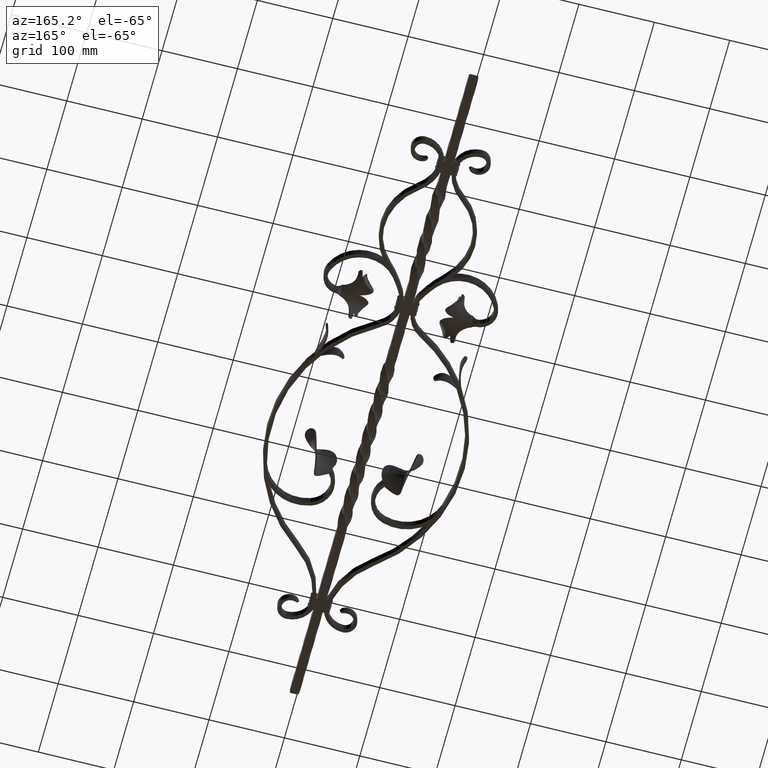
[diagram: clean part render]
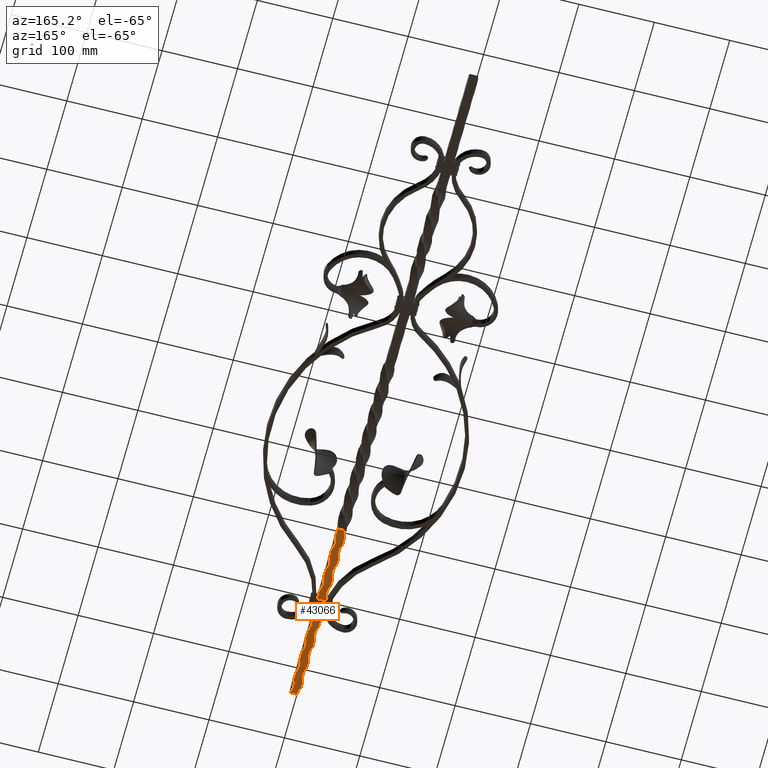
[diagram: same view with one face highlighted and labeled with its STEP entity id]
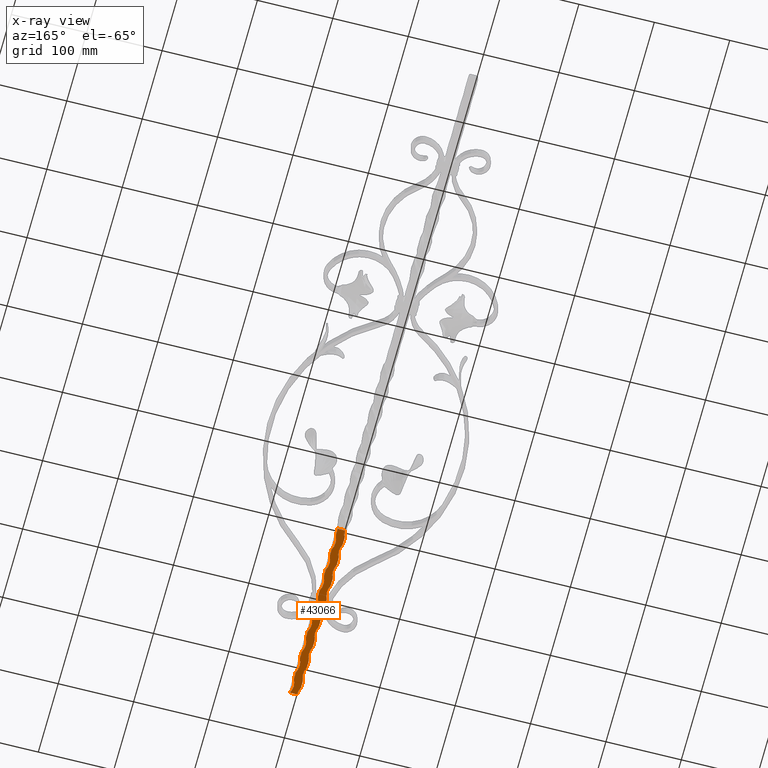
[diagram: x-ray of the same camera — body ghosted, the highlighted face saturated]
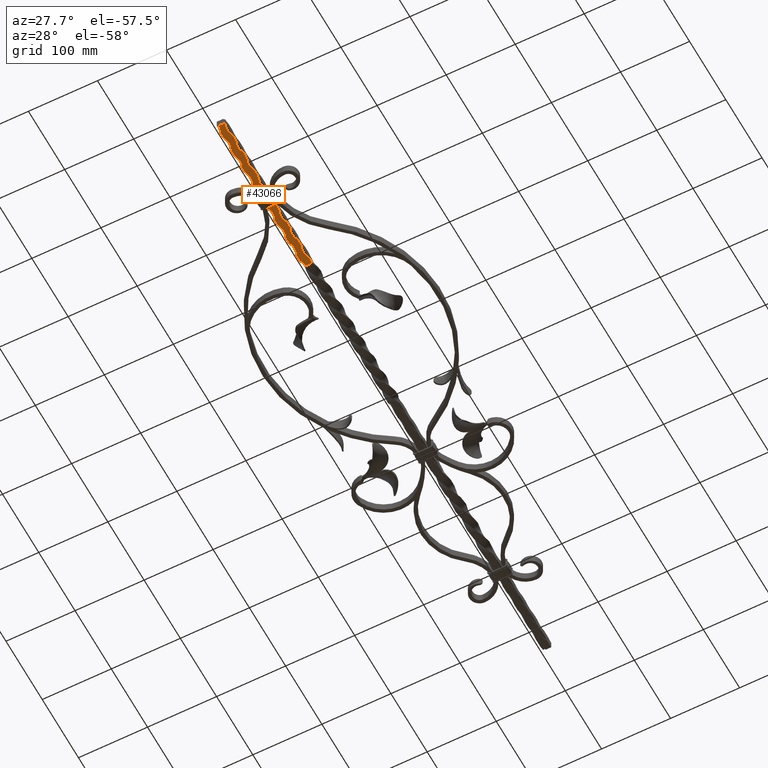
[diagram: same view with one face highlighted and labeled with its STEP entity id]
A machine part, auxiliary view. The second image highlights one B-rep face of the part: STEP entity #43066.
The next image is the same camera in x-ray: the body ghosted, the highlighted face saturated — about 0% of this face is hidden behind the body in this view.
A second angle (auxiliary view) of the same face is appended — the face is thin or edge-on in the first view.
In plain terms, the highlighted planar face has unit normal (0, 0, 1).
Its self-contained STEP definition (entity closure, byte-faithful):
#184 = CARTESIAN_POINT ( 'NONE',  ( 5.999999999685659446, -429.9999997135420813, -5.999999847536567010 ) ) ;
#329 = ORIENTED_EDGE ( 'NONE', *, *, #42708, .T. ) ;
#478 = ORIENTED_EDGE ( 'NONE', *, *, #45015, .F. ) ;
#612 = CARTESIAN_POINT ( 'NONE',  ( -5.999999840592119327, -439.9999997005213004, -5.999999999685662999 ) ) ;
#917 = B_SPLINE_CURVE_WITH_KNOTS ( 'NONE', 3,
 ( #52810, #15161, #49097, #53370 ),
 .UNSPECIFIED., .F., .F.,
 ( 4, 4 ),
 ( 0.6666666675319417035, 0.7083333324085947513 ),
 .UNSPECIFIED. ) ;
#940 = CARTESIAN_POINT ( 'NONE',  ( -3.500000000314102522, -450.0000000000000000, -5.999999999816880702 ) ) ;
#1071 = VERTEX_POINT ( 'NONE', #19624 ) ;
#1162 = DIRECTION ( 'NONE',  ( 1.000000000000000000, 0.000000000000000000, -5.239015920434916151E-11 ) ) ;
#1188 = CARTESIAN_POINT ( 'NONE',  ( 5.999999999685659446, -429.9999997135420813, -5.999999847536567010 ) ) ;
#1237 = DIRECTION ( 'NONE',  ( 1.000000000000000000, 0.000000000000000000, -5.239015920434915504E-11 ) ) ;
#1297 = CARTESIAN_POINT ( 'NONE',  ( 5.999995960595793321, -209.9999643872420165, -5.999988758433365987 ) ) ;
#1341 = CARTESIAN_POINT ( 'NONE',  ( 5.999999999685661223, -309.9999998697921910, -5.999999930869902798 ) ) ;
#1344 = CARTESIAN_POINT ( 'NONE',  ( 5.999999999685660335, -249.9999999479171038, -5.999999972536565807 ) ) ;
#1840 = AXIS2_PLACEMENT_3D ( 'NONE', #45204, #24595, #45029 ) ;
#1947 = ORIENTED_EDGE ( 'NONE', *, *, #36749, .T. ) ;
#2123 = CARTESIAN_POINT ( 'NONE',  ( -5.999999928555080686, -313.3333333723956002, -5.999999999685662999 ) ) ;
#2806 = EDGE_CURVE ( 'NONE', #43339, #19655, #52610, .T. ) ;
#2924 = ORIENTED_EDGE ( 'NONE', *, *, #9545, .F. ) ;
#3241 = AXIS2_PLACEMENT_3D ( 'NONE', #54245, #49784, #50322 ) ;
#3319 = LINE ( 'NONE', #47159, #9989 ) ;
#3405 = CARTESIAN_POINT ( 'NONE',  ( 5.999999999685893926, -420.0000000000000000, -6.000000000314094528 ) ) ;
#3529 = ORIENTED_EDGE ( 'NONE', *, *, #25804, .F. ) ;
#3886 = CARTESIAN_POINT ( 'NONE',  ( -6.000000000314101634, -399.9999999999999432, -5.999999999685907248 ) ) ;
#4099 = DIRECTION ( 'NONE',  ( -1.000000000000000000, 5.849386045986347711E-19, 5.239016895960169455E-11 ) ) ;
#4148 = ORIENTED_EDGE ( 'NONE', *, *, #36052, .F. ) ;
#4176 = B_SPLINE_CURVE_WITH_KNOTS ( 'NONE', 3,
 ( #4248, #38773, #4631, #184 ),
 .UNSPECIFIED., .F., .F.,
 ( 4, 4 ),
 ( 0.8750000011393205268, 0.9166666654730919461 ),
 .UNSPECIFIED. ) ;
#4181 = VERTEX_POINT ( 'NONE', #17060 ) ;
#4228 = CARTESIAN_POINT ( 'NONE',  ( -5.999999903092119169, -349.9999998177087832, -5.999999999685662999 ) ) ;
#4248 = CARTESIAN_POINT ( 'NONE',  ( 5.999999999685893926, -420.0000000000000000, -6.000000000314094528 ) ) ;
#4591 = CARTESIAN_POINT ( 'NONE',  ( -5.999999903092119169, -349.9999998177087832, -5.999999999685662999 ) ) ;
#4631 = CARTESIAN_POINT ( 'NONE',  ( 5.999999999685661223, -426.6666665668403198, -5.999999849851382905 ) ) ;
#5291 = CARTESIAN_POINT ( 'NONE',  ( 5.999999999685662111, -213.3333333289931772, -5.999999997999530876 ) ) ;
#5531 = B_SPLINE_CURVE_WITH_KNOTS ( 'NONE', 3,
 ( #3886, #11721, #33057, #54771 ),
 .UNSPECIFIED., .F., .F.,
 ( 4, 4 ),
 ( 0.7916666676957437865, 0.8333333322468764459 ),
 .UNSPECIFIED. ) ;
#5828 = ORIENTED_EDGE ( 'NONE', *, *, #17840, .F. ) ;
#5876 = VERTEX_POINT ( 'NONE', #49835 ) ;
#6397 = B_SPLINE_CURVE_WITH_KNOTS ( 'NONE', 3,
 ( #26751, #39553, #31220, #1341 ),
 .UNSPECIFIED., .F., .F.,
 ( 4, 4 ),
 ( 0.3750000004882789728, 0.4166666661241343328 ),
 .UNSPECIFIED. ) ;
#7375 = VERTEX_POINT ( 'NONE', #47476 ) ;
#7378 = AXIS2_PLACEMENT_3D ( 'NONE', #49378, #23610, #40993 ) ;
#7679 = EDGE_CURVE ( 'NONE', #41020, #54503, #23185, .T. ) ;
#7751 = EDGE_CURVE ( 'NONE', #30237, #11842, #30468, .T. ) ;
#8070 = CARTESIAN_POINT ( 'NONE',  ( 24.74999999968593301, -229.9999999999999147, -6.000000001296411867 ) ) ;
#8464 = CIRCLE ( 'NONE', #3241, 21.25000000000003908 ) ;
#8740 = EDGE_CURVE ( 'NONE', #18875, #27350, #23825, .T. ) ;
#8919 = CARTESIAN_POINT ( 'NONE',  ( -5.999999882258784112, -379.9999997786462131, -5.999999999685662999 ) ) ;
#8970 = ORIENTED_EDGE ( 'NONE', *, *, #39222, .F. ) ;
#9101 = FACE_OUTER_BOUND ( 'NONE', #54392, .T. ) ;
#9335 = ORIENTED_EDGE ( 'NONE', *, *, #29675, .F. ) ;
#9545 = EDGE_CURVE ( 'NONE', #38109, #35365, #15712, .T. ) ;
#9679 = CIRCLE ( 'NONE', #10067, 21.25000000000003553 ) ;
#9791 = CIRCLE ( 'NONE', #11633, 21.25000000000003908 ) ;
#9792 = DIRECTION ( 'NONE',  ( -5.239016895960169455E-11, -8.731861808807583131E-21, -1.000000000000000000 ) ) ;
#9814 = AXIS2_PLACEMENT_3D ( 'NONE', #20106, #37503, #37330 ) ;
#9831 = ORIENTED_EDGE ( 'NONE', *, *, #8740, .F. ) ;
#9863 = VERTEX_POINT ( 'NONE', #50692 ) ;
#9931 = CARTESIAN_POINT ( 'NONE',  ( -5.999999923925450673, -319.9999998567711827, -5.999999999685662999 ) ) ;
#9989 = VECTOR ( 'NONE', #4099, 1000.000000000000000 ) ;
#10067 = AXIS2_PLACEMENT_3D ( 'NONE', #15089, #15451, #31930 ) ;
#10335 = DIRECTION ( 'NONE',  ( 1.000000000000000000, -6.530723674265616128E-15, -5.239015920434916151E-11 ) ) ;
#10749 = EDGE_CURVE ( 'NONE', #54503, #19002, #23878, .T. ) ;
#10974 = CARTESIAN_POINT ( 'NONE',  ( -6.000000000314099857, -249.9999999999999432, -5.999999999685907248 ) ) ;
#10988 = CARTESIAN_POINT ( 'NONE',  ( -5.999999944758783954, -289.9999998958337528, -5.999999999685662999 ) ) ;
#11054 = VERTEX_POINT ( 'NONE', #26564 ) ;
#11082 = CARTESIAN_POINT ( 'NONE',  ( -5.999999988740265522, -226.6666666536459900, -5.999999999685662999 ) ) ;
#11190 = EDGE_CURVE ( 'NONE', #11653, #31189, #40910, .T. ) ;
#11297 = DIRECTION ( 'NONE',  ( -5.239016895960169455E-11, -8.731861808807583131E-21, -1.000000000000000000 ) ) ;
#11633 = AXIS2_PLACEMENT_3D ( 'NONE', #35381, #22243, #1237 ) ;
#11653 = VERTEX_POINT ( 'NONE', #27000 ) ;
#11721 = CARTESIAN_POINT ( 'NONE',  ( -5.999999866055080844, -403.3333334114581703, -5.999999999685662999 ) ) ;
#11808 = AXIS2_PLACEMENT_3D ( 'NONE', #40940, #45609, #19849 ) ;
#11842 = VERTEX_POINT ( 'NONE', #3405 ) ;
#11936 = CARTESIAN_POINT ( 'NONE',  ( 5.999999999685660335, -399.9999997526046513, -5.999999868369902067 ) ) ;
#12058 = CARTESIAN_POINT ( 'NONE',  ( 5.999999999685660335, -279.9999999088545906, -5.999999951703234302 ) ) ;
#12081 = VERTEX_POINT ( 'NONE', #1344 ) ;
#12432 = ORIENTED_EDGE ( 'NONE', *, *, #2806, .F. ) ;
#12687 = CARTESIAN_POINT ( 'NONE',  ( 24.74999999968593301, -290.0000000000000000, -6.000000001296411867 ) ) ;
#13120 = CARTESIAN_POINT ( 'NONE',  ( -6.000000000314100745, -279.9999999999999432, -5.999999999685907248 ) ) ;
#13629 = CARTESIAN_POINT ( 'NONE',  ( 5.999999999685660335, -399.9999997526046513, -5.999999868369902067 ) ) ;
#13791 = VERTEX_POINT ( 'NONE', #20568 ) ;
#14259 = ORIENTED_EDGE ( 'NONE', *, *, #7679, .T. ) ;
#14987 = CARTESIAN_POINT ( 'NONE',  ( -6.000000000314101634, -399.9999999999999432, -5.999999999685907248 ) ) ;
#15089 = CARTESIAN_POINT ( 'NONE',  ( -24.75000000031413805, -389.9999999999999432, -5.999999998703589910 ) ) ;
#15161 = CARTESIAN_POINT ( 'NONE',  ( -5.999999886888414125, -373.3333333984373894, -5.999999999685662999 ) ) ;
#15243 = CARTESIAN_POINT ( 'NONE',  ( -6.000000000314099857, -249.9999999999999432, -5.999999999685907248 ) ) ;
#15451 = DIRECTION ( 'NONE',  ( -5.239016895960169455E-11, -8.731861808807583131E-21, -1.000000000000000000 ) ) ;
#15712 = B_SPLINE_CURVE_WITH_KNOTS ( 'NONE', 3,
 ( #42552, #26030, #17367, #612 ),
 .UNSPECIFIED., .F., .F.,
 ( 4, 4 ),
 ( 0.9166666678595463136, 0.9583333320851580295 ),
 .UNSPECIFIED. ) ;
#15780 = CARTESIAN_POINT ( 'NONE',  ( -5.999999965592115458, -259.9999999348960955, -5.999999999685662999 ) ) ;
#15791 = DIRECTION ( 'NONE',  ( 1.000000000000000000, 1.306144734853123226E-14, -5.239015920434916151E-11 ) ) ;
#15846 = DIRECTION ( 'NONE',  ( 1.000000000000000000, 7.836868409118738407E-15, -5.239015920434916151E-11 ) ) ;
#16126 = VERTEX_POINT ( 'NONE', #1297 ) ;
#16415 = ORIENTED_EDGE ( 'NONE', *, *, #49522, .T. ) ;
#16605 = CARTESIAN_POINT ( 'NONE',  ( 5.999999999685658558, -396.6666665798611575, -5.999999870684716186 ) ) ;
#16665 = CARTESIAN_POINT ( 'NONE',  ( -6.000000000314099857, -220.0000000000000284, -5.999999999685907248 ) ) ;
#16885 = ORIENTED_EDGE ( 'NONE', *, *, #32055, .T. ) ;
#16946 = CARTESIAN_POINT ( 'NONE',  ( -6.000000000314101634, -430.0000000000000000, -5.999999999685907248 ) ) ;
#17060 = CARTESIAN_POINT ( 'NONE',  ( 5.999999999685895702, -239.9999999999999432, -6.000000000314094528 ) ) ;
#17255 = CARTESIAN_POINT ( 'NONE',  ( -5.999999905406932399, -346.6666666015626674, -5.999999999685662999 ) ) ;
#17367 = CARTESIAN_POINT ( 'NONE',  ( -5.999999842906934333, -436.6666665625002111, -5.999999999685662999 ) ) ;
#17840 = EDGE_CURVE ( 'NONE', #31926, #18875, #24348, .T. ) ;
#17884 = CARTESIAN_POINT ( 'NONE',  ( -5.999999965592115458, -259.9999999348960955, -5.999999999685662999 ) ) ;
#18134 = CIRCLE ( 'NONE', #19754, 21.25000000000003908 ) ;
#18875 = VERTEX_POINT ( 'NONE', #17884 ) ;
#19002 = VERTEX_POINT ( 'NONE', #940 ) ;
#19046 = CARTESIAN_POINT ( 'NONE',  ( -3.500000000314102522, -210.0000000001805347, -5.999999999816880702 ) ) ;
#19163 = CARTESIAN_POINT ( 'NONE',  ( -6.000000000314101634, -370.0000000000000568, -5.999999999685907248 ) ) ;
#19181 = AXIS2_PLACEMENT_3D ( 'NONE', #25953, #22286, #51589 ) ;
#19194 = CARTESIAN_POINT ( 'NONE',  ( 5.999999999685661223, -243.3333333420137023, -5.999999977166198484 ) ) ;
#19295 = ORIENTED_EDGE ( 'NONE', *, *, #34783, .T. ) ;
#19343 = CARTESIAN_POINT ( 'NONE',  ( 5.999999999685894814, -330.0000000000000000, -6.000000000314094528 ) ) ;
#19428 = CARTESIAN_POINT ( 'NONE',  ( 5.999999999685893926, -360.0000000000000568, -6.000000000314094528 ) ) ;
#19624 = CARTESIAN_POINT ( 'NONE',  ( 5.999999999685661223, -309.9999998697921910, -5.999999930869902798 ) ) ;
#19655 = VERTEX_POINT ( 'NONE', #38878 ) ;
#19754 = AXIS2_PLACEMENT_3D ( 'NONE', #12687, #43111, #51663 ) ;
#19849 = DIRECTION ( 'NONE',  ( 1.000000000000000000, 0.000000000000000000, -5.239015920434915504E-11 ) ) ;
#20106 = CARTESIAN_POINT ( 'NONE',  ( 24.74999999968593301, -379.9999999999999432, -6.000000001296411867 ) ) ;
#20568 = CARTESIAN_POINT ( 'NONE',  ( 5.999999999685893926, -360.0000000000000568, -6.000000000314094528 ) ) ;
#20909 = CARTESIAN_POINT ( 'NONE',  ( 5.999999999685894814, -269.9999999999999432, -6.000000000314094528 ) ) ;
#21125 = DIRECTION ( 'NONE',  ( 1.000000000000000000, -8.495165355484713727E-12, -5.239015920434916151E-11 ) ) ;
#21277 = VERTEX_POINT ( 'NONE', #8919 ) ;
#21477 = EDGE_CURVE ( 'NONE', #35365, #19002, #54006, .T. ) ;
#21526 = B_SPLINE_CURVE_WITH_KNOTS ( 'NONE', 3,
 ( #45143, #19194, #37327, #46048 ),
 .UNSPECIFIED., .F., .F.,
 ( 4, 4 ),
 ( 0.1250000001627580848, 0.1666666664496546379 ),
 .UNSPECIFIED. ) ;
#21562 = AXIS2_PLACEMENT_3D ( 'NONE', #8070, #24618, #41840 ) ;
#22228 = EDGE_CURVE ( 'NONE', #36717, #22527, #18134, .T. ) ;
#22243 = DIRECTION ( 'NONE',  ( 5.239016895960169455E-11, 8.731861808807583131E-21, 1.000000000000000000 ) ) ;
#22286 = DIRECTION ( 'NONE',  ( 5.239016895960169455E-11, 8.731861808807583131E-21, 1.000000000000000000 ) ) ;
#22527 = VERTEX_POINT ( 'NONE', #45492 ) ;
#22983 = ORIENTED_EDGE ( 'NONE', *, *, #7751, .T. ) ;
#23002 = B_SPLINE_CURVE_WITH_KNOTS ( 'NONE', 3,
 ( #47660, #48037, #26866, #38954 ),
 .UNSPECIFIED., .F., .F.,
 ( 4, 4 ),
 ( 0.2916666670405352324, 0.3333333328937506668 ),
 .UNSPECIFIED. ) ;
#23185 = CIRCLE ( 'NONE', #36354, 21.25000000000003553 ) ;
#23329 = CARTESIAN_POINT ( 'NONE',  ( 5.999999999685661223, -366.6666665928821089, -5.999999891518051243 ) ) ;
#23363 = ORIENTED_EDGE ( 'NONE', *, *, #39187, .T. ) ;
#23379 = CARTESIAN_POINT ( 'NONE',  ( -24.75000000031413805, -450.0000000000000000, -5.999999998703589910 ) ) ;
#23610 = DIRECTION ( 'NONE',  ( -5.239016895960169455E-11, -8.731861808807583131E-21, -1.000000000000000000 ) ) ;
#23825 = CIRCLE ( 'NONE', #29689, 21.25000000000003553 ) ;
#23878 = B_SPLINE_CURVE_WITH_KNOTS ( 'NONE', 3,
 ( #45362, #45899, #24909, #53909 ),
 .UNSPECIFIED., .F., .F.,
 ( 4, 4 ),
 ( 0.000000000000000000, 0.7916666776620173707 ),
 .UNSPECIFIED. ) ;
#24348 = B_SPLINE_CURVE_WITH_KNOTS ( 'NONE', 3,
 ( #15243, #40969, #28012, #15780 ),
 .UNSPECIFIED., .F., .F.,
 ( 4, 4 ),
 ( 0.1666666668767328718, 0.2083333330554683616 ),
 .UNSPECIFIED. ) ;
#24470 = CARTESIAN_POINT ( 'NONE',  ( 24.74999999968592945, -440.0000000000000000, -6.000000001296411867 ) ) ;
#24595 = DIRECTION ( 'NONE',  ( 5.239016895960169455E-11, 8.731861808807583131E-21, 1.000000000000000000 ) ) ;
#24618 = DIRECTION ( 'NONE',  ( 5.239016895960169455E-11, 8.731861808807583131E-21, 1.000000000000000000 ) ) ;
#24909 = CARTESIAN_POINT ( 'NONE',  ( -0.3333333336475143294, -450.0000000000000568, -5.999999999982541077 ) ) ;
#25143 = CARTESIAN_POINT ( 'NONE',  ( 5.999999999685659446, -273.3333333550344832, -5.999999956332862538 ) ) ;
#25172 = B_SPLINE_CURVE_WITH_KNOTS ( 'NONE', 3,
 ( #34635, #5291, #30921, #26632 ),
 .UNSPECIFIED., .F., .F.,
 ( 4, 4 ),
 ( 0.000000000000000000, 0.04166666661241451991 ),
 .UNSPECIFIED. ) ;
#25275 = EDGE_CURVE ( 'NONE', #48327, #21277, #917, .T. ) ;
#25804 = EDGE_CURVE ( 'NONE', #27350, #43339, #23002, .T. ) ;
#25904 = DIRECTION ( 'NONE',  ( -5.239016895960169455E-11, -8.731861808807583131E-21, -1.000000000000000000 ) ) ;
#25953 = CARTESIAN_POINT ( 'NONE',  ( 24.74999999968593301, -320.0000000000000000, -6.000000001296411867 ) ) ;
#26026 = B_SPLINE_CURVE_WITH_KNOTS ( 'NONE', 3,
 ( #41970, #28661, #16605, #11936 ),
 .UNSPECIFIED., .F., .F.,
 ( 4, 4 ),
 ( 0.7500000009765604991, 0.7916666656358526399 ),
 .UNSPECIFIED. ) ;
#26030 = CARTESIAN_POINT ( 'NONE',  ( -5.999999845221749339, -433.3333334244790080, -5.999999999685662999 ) ) ;
#26564 = CARTESIAN_POINT ( 'NONE',  ( -5.999999986425450516, -229.9999999739587508, -5.999999999685665664 ) ) ;
#26632 = CARTESIAN_POINT ( 'NONE',  ( 5.999999999685658558, -219.9999999869795033, -5.999999993369898199 ) ) ;
#26702 = ORIENTED_EDGE ( 'NONE', *, *, #27441, .F. ) ;
#26751 = CARTESIAN_POINT ( 'NONE',  ( 5.999999999685894814, -300.0000000000000000, -6.000000000314094528 ) ) ;
#26866 = CARTESIAN_POINT ( 'NONE',  ( -5.999999947073599849, -286.6666666276043998, -5.999999999685662999 ) ) ;
#26934 = DIRECTION ( 'NONE',  ( -5.239016895960169455E-11, -8.731861808807583131E-21, -1.000000000000000000 ) ) ;
#26950 = ORIENTED_EDGE ( 'NONE', *, *, #52263, .T. ) ;
#26981 = CARTESIAN_POINT ( 'NONE',  ( -6.000000000314100745, -310.0000000000000000, -5.999999999685907248 ) ) ;
#27000 = CARTESIAN_POINT ( 'NONE',  ( -5.999999923925450673, -319.9999998567711827, -5.999999999685662999 ) ) ;
#27204 = CARTESIAN_POINT ( 'NONE',  ( 5.999999999685659446, -369.9999997916670509, -5.999999889203234460 ) ) ;
#27350 = VERTEX_POINT ( 'NONE', #13120 ) ;
#27441 = EDGE_CURVE ( 'NONE', #47737, #39628, #27742, .T. ) ;
#27566 = ORIENTED_EDGE ( 'NONE', *, *, #33400, .T. ) ;
#27581 = VERTEX_POINT ( 'NONE', #39985 ) ;
#27600 = ORIENTED_EDGE ( 'NONE', *, *, #42827, .T. ) ;
#27742 = CIRCLE ( 'NONE', #47860, 21.25000000000003553 ) ;
#27884 = EDGE_CURVE ( 'NONE', #12081, #27581, #8464, .T. ) ;
#27894 = CARTESIAN_POINT ( 'NONE',  ( 5.999999999685661223, -336.6666666059030035, -5.999999912351381859 ) ) ;
#28012 = CARTESIAN_POINT ( 'NONE',  ( -5.999999967906931353, -256.6666666406250101, -5.999999999685662999 ) ) ;
#28661 = CARTESIAN_POINT ( 'NONE',  ( 5.999999999685659446, -393.3333334071178342, -5.999999872999531192 ) ) ;
#29167 = ORIENTED_EDGE ( 'NONE', *, *, #31429, .T. ) ;
#29189 = ORIENTED_EDGE ( 'NONE', *, *, #49607, .F. ) ;
#29301 = CARTESIAN_POINT ( 'NONE',  ( -5.999999840592119327, -439.9999997005213004, -5.999999999685662999 ) ) ;
#29675 = EDGE_CURVE ( 'NONE', #7375, #38109, #49527, .T. ) ;
#29689 = AXIS2_PLACEMENT_3D ( 'NONE', #41705, #50067, #37628 ) ;
#29823 = CARTESIAN_POINT ( 'NONE',  ( -24.75000000031413805, -210.0000000000000284, -5.999999998703589910 ) ) ;
#30037 = CARTESIAN_POINT ( 'NONE',  ( -6.000000000314100745, -340.0000000000000000, -5.999999999685907248 ) ) ;
#30237 = VERTEX_POINT ( 'NONE', #13629 ) ;
#30468 = CIRCLE ( 'NONE', #11808, 21.25000000000003908 ) ;
#30714 = CIRCLE ( 'NONE', #49979, 21.25000000000003553 ) ;
#30921 = CARTESIAN_POINT ( 'NONE',  ( 5.999999999685662999, -216.6666666579863545, -5.999999995684716758 ) ) ;
#31189 = VERTEX_POINT ( 'NONE', #33164 ) ;
#31220 = CARTESIAN_POINT ( 'NONE',  ( 5.999999999685661223, -306.6666666189238413, -5.999999933184717804 ) ) ;
#31429 = EDGE_CURVE ( 'NONE', #16126, #5876, #25172, .T. ) ;
#31767 = ORIENTED_EDGE ( 'NONE', *, *, #22228, .T. ) ;
#31900 = CIRCLE ( 'NONE', #19181, 21.25000000000003908 ) ;
#31926 = VERTEX_POINT ( 'NONE', #10974 ) ;
#31930 = DIRECTION ( 'NONE',  ( 1.000000000000000000, 7.836868409118738407E-15, -5.239015920434916151E-11 ) ) ;
#32055 = EDGE_CURVE ( 'NONE', #11842, #41020, #4176, .T. ) ;
#32354 = EDGE_CURVE ( 'NONE', #11054, #31926, #30714, .T. ) ;
#32805 = VERTEX_POINT ( 'NONE', #52148 ) ;
#32974 = DIRECTION ( 'NONE',  ( 5.239016895960169455E-11, 8.731861808807583131E-21, 1.000000000000000000 ) ) ;
#33057 = CARTESIAN_POINT ( 'NONE',  ( -5.999999863740265837, -406.6666665755210488, -5.999999999685662999 ) ) ;
#33164 = CARTESIAN_POINT ( 'NONE',  ( -6.000000000314100745, -340.0000000000000000, -5.999999999685907248 ) ) ;
#33400 = EDGE_CURVE ( 'NONE', #54892, #9863, #38766, .T. ) ;
#33444 = ORIENTED_EDGE ( 'NONE', *, *, #21477, .F. ) ;
#33647 = AXIS2_PLACEMENT_3D ( 'NONE', #50323, #53881, #15846 ) ;
#33943 = B_SPLINE_CURVE_WITH_KNOTS ( 'NONE', 3,
 ( #49131, #41302, #11082, #40752 ),
 .UNSPECIFIED., .F., .F.,
 ( 4, 4 ),
 ( 0.04166666671293051127, 0.08333333321718755515 ),
 .UNSPECIFIED. ) ;
#34626 = ORIENTED_EDGE ( 'NONE', *, *, #37472, .F. ) ;
#34635 = CARTESIAN_POINT ( 'NONE',  ( 5.999995960595793321, -209.9999643872420165, -5.999988758433365987 ) ) ;
#34783 = EDGE_CURVE ( 'NONE', #49703, #32805, #48345, .T. ) ;
#35365 = VERTEX_POINT ( 'NONE', #29301 ) ;
#35381 = CARTESIAN_POINT ( 'NONE',  ( 24.74999999968593301, -350.0000000000000568, -6.000000001296411867 ) ) ;
#35560 = CARTESIAN_POINT ( 'NONE',  ( -24.75000000031413805, -239.9999999999999432, -5.999999998703589910 ) ) ;
#35605 = EDGE_CURVE ( 'NONE', #31189, #45311, #52252, .T. ) ;
#36052 = EDGE_CURVE ( 'NONE', #39628, #11054, #33943, .T. ) ;
#36354 = AXIS2_PLACEMENT_3D ( 'NONE', #24470, #32974, #40765 ) ;
#36717 = VERTEX_POINT ( 'NONE', #12058 ) ;
#36749 = EDGE_CURVE ( 'NONE', #1071, #49703, #31900, .T. ) ;
#36794 = CARTESIAN_POINT ( 'NONE',  ( 5.999999999685661223, -339.9999998307296778, -5.999999910036569517 ) ) ;
#36881 = B_SPLINE_CURVE_WITH_KNOTS ( 'NONE', 3,
 ( #19428, #48551, #23329, #27204 ),
 .UNSPECIFIED., .F., .F.,
 ( 4, 4 ),
 ( 0.6250000008138005825, 0.6666666657986128897 ),
 .UNSPECIFIED. ) ;
#37049 = CARTESIAN_POINT ( 'NONE',  ( 5.999999999685660335, -279.9999999088545906, -5.999999951703234302 ) ) ;
#37135 = AXIS2_PLACEMENT_3D ( 'NONE', #23379, #11297, #40959 ) ;
#37321 = EDGE_CURVE ( 'NONE', #19655, #11653, #43227, .T. ) ;
#37327 = CARTESIAN_POINT ( 'NONE',  ( 5.999999999685661223, -246.6666666449654599, -5.999999974851383477 ) ) ;
#37330 = DIRECTION ( 'NONE',  ( 1.000000000000000000, 0.000000000000000000, -5.239015920434915504E-11 ) ) ;
#37472 = EDGE_CURVE ( 'NONE', #16126, #47737, #3319, .T. ) ;
#37503 = DIRECTION ( 'NONE',  ( 5.239016895960169455E-11, 8.731861808807583131E-21, 1.000000000000000000 ) ) ;
#37628 = DIRECTION ( 'NONE',  ( 1.000000000000000000, -7.836868409118738407E-15, -5.239015920434916151E-11 ) ) ;
#37899 = AXIS2_PLACEMENT_3D ( 'NONE', #52014, #26934, #1162 ) ;
#38075 = ORIENTED_EDGE ( 'NONE', *, *, #35605, .F. ) ;
#38109 = VERTEX_POINT ( 'NONE', #16946 ) ;
#38766 = CIRCLE ( 'NONE', #9814, 21.25000000000003908 ) ;
#38773 = CARTESIAN_POINT ( 'NONE',  ( 5.999999999685661223, -423.3333334201386151, -5.999999852166197911 ) ) ;
#38878 = CARTESIAN_POINT ( 'NONE',  ( -6.000000000314100745, -310.0000000000000000, -5.999999999685907248 ) ) ;
#38954 = CARTESIAN_POINT ( 'NONE',  ( -5.999999944758783954, -289.9999998958337528, -5.999999999685662999 ) ) ;
#39187 = EDGE_CURVE ( 'NONE', #4181, #12081, #21526, .T. ) ;
#39222 = EDGE_CURVE ( 'NONE', #53273, #7375, #5531, .T. ) ;
#39553 = CARTESIAN_POINT ( 'NONE',  ( 5.999999999685661223, -303.3333333680553778, -5.999999935499531922 ) ) ;
#39628 = VERTEX_POINT ( 'NONE', #16665 ) ;
#39985 = CARTESIAN_POINT ( 'NONE',  ( 5.999999999685894814, -269.9999999999999432, -6.000000000314094528 ) ) ;
#40037 = B_SPLINE_CURVE_WITH_KNOTS ( 'NONE', 3,
 ( #20909, #25143, #45945, #37049 ),
 .UNSPECIFIED., .F., .F.,
 ( 4, 4 ),
 ( 0.2500000003255184455, 0.2916666662868941939 ),
 .UNSPECIFIED. ) ;
#40258 = ORIENTED_EDGE ( 'NONE', *, *, #25275, .F. ) ;
#40752 = CARTESIAN_POINT ( 'NONE',  ( -5.999999986425450516, -229.9999999739587508, -5.999999999685665664 ) ) ;
#40765 = DIRECTION ( 'NONE',  ( 1.000000000000000000, 0.000000000000000000, -5.239015920434916151E-11 ) ) ;
#40890 = EDGE_CURVE ( 'NONE', #5876, #4181, #54357, .T. ) ;
#40910 = CIRCLE ( 'NONE', #7378, 21.25000000000003553 ) ;
#40940 = CARTESIAN_POINT ( 'NONE',  ( 24.74999999968593301, -410.0000000000000000, -6.000000001296411867 ) ) ;
#40954 = EDGE_CURVE ( 'NONE', #27581, #36717, #40037, .T. ) ;
#40959 = DIRECTION ( 'NONE',  ( 1.000000000000000000, 1.306144734853123226E-14, -5.239015920434916151E-11 ) ) ;
#40969 = CARTESIAN_POINT ( 'NONE',  ( -5.999999970221745471, -253.3333333463539532, -5.999999999685662999 ) ) ;
#40993 = DIRECTION ( 'NONE',  ( 1.000000000000000000, 5.224578939412492272E-15, -5.239015920434916151E-11 ) ) ;
#41020 = VERTEX_POINT ( 'NONE', #1188 ) ;
#41170 = CARTESIAN_POINT ( 'NONE',  ( -24.75000000031413805, -420.0000000000000000, -5.999999998703589910 ) ) ;
#41302 = CARTESIAN_POINT ( 'NONE',  ( -5.999999991055080528, -223.3333333333332007, -5.999999999685662999 ) ) ;
#41705 = CARTESIAN_POINT ( 'NONE',  ( -24.75000000031413805, -269.9999999999999432, -5.999999998703589910 ) ) ;
#41840 = DIRECTION ( 'NONE',  ( 1.000000000000000000, 0.000000000000000000, -5.239015920434915504E-11 ) ) ;
#41970 = CARTESIAN_POINT ( 'NONE',  ( 5.999999999685893926, -389.9999999999999432, -6.000000000314094528 ) ) ;
#42552 = CARTESIAN_POINT ( 'NONE',  ( -6.000000000314101634, -430.0000000000000000, -5.999999999685907248 ) ) ;
#42708 = EDGE_CURVE ( 'NONE', #32805, #13791, #9791, .T. ) ;
#42783 = ORIENTED_EDGE ( 'NONE', *, *, #10749, .T. ) ;
#42815 = CARTESIAN_POINT ( 'NONE',  ( -5.999999907721747405, -343.3333333854164948, -5.999999999685662999 ) ) ;
#42827 = EDGE_CURVE ( 'NONE', #13791, #54892, #36881, .T. ) ;
#43019 = ORIENTED_EDGE ( 'NONE', *, *, #40890, .T. ) ;
#43066 = ADVANCED_FACE ( 'NONE', ( #9101 ), #49291, .F. ) ;
#43111 = DIRECTION ( 'NONE',  ( 5.239016895960169455E-11, 8.731861808807583131E-21, 1.000000000000000000 ) ) ;
#43227 = B_SPLINE_CURVE_WITH_KNOTS ( 'NONE', 3,
 ( #26981, #2123, #48709, #9931 ),
 .UNSPECIFIED., .F., .F.,
 ( 4, 4 ),
 ( 0.4166666672043370934, 0.4583333327320315842 ),
 .UNSPECIFIED. ) ;
#43339 = VERTEX_POINT ( 'NONE', #10988 ) ;
#43699 = CIRCLE ( 'NONE', #37899, 21.25000000000003553 ) ;
#44342 = ORIENTED_EDGE ( 'NONE', *, *, #37321, .F. ) ;
#44927 = ORIENTED_EDGE ( 'NONE', *, *, #27884, .T. ) ;
#45015 = EDGE_CURVE ( 'NONE', #21277, #53273, #9679, .T. ) ;
#45029 = DIRECTION ( 'NONE',  ( 1.000000000000000000, -5.849386045986347711E-19, -5.239016895960169455E-11 ) ) ;
#45143 = CARTESIAN_POINT ( 'NONE',  ( 5.999999999685895702, -239.9999999999999432, -6.000000000314094528 ) ) ;
#45204 = CARTESIAN_POINT ( 'NONE',  ( 5.999999999685660335, 450.0000000000000000, -6.000000000314344994 ) ) ;
#45281 = DIRECTION ( 'NONE',  ( -5.239016895960169455E-11, -8.731861808807583131E-21, -1.000000000000000000 ) ) ;
#45311 = VERTEX_POINT ( 'NONE', #4228 ) ;
#45362 = CARTESIAN_POINT ( 'NONE',  ( 5.999999999685893037, -450.0000000000000000, -6.000000000314094528 ) ) ;
#45492 = CARTESIAN_POINT ( 'NONE',  ( 5.999999999685894814, -300.0000000000000000, -6.000000000314094528 ) ) ;
#45609 = DIRECTION ( 'NONE',  ( 5.239016895960169455E-11, 8.731861808807583131E-21, 1.000000000000000000 ) ) ;
#45899 = CARTESIAN_POINT ( 'NONE',  ( 2.833333333019073752, -450.0000000000000000, -6.000000000148443036 ) ) ;
#45945 = CARTESIAN_POINT ( 'NONE',  ( 5.999999999685659446, -276.6666666319445085, -5.999999954018047532 ) ) ;
#46048 = CARTESIAN_POINT ( 'NONE',  ( 5.999999999685660335, -249.9999999479171038, -5.999999972536565807 ) ) ;
#47159 = CARTESIAN_POINT ( 'NONE',  ( 5.999999999685660335, -210.0000000001805347, -6.000000000314344994 ) ) ;
#47476 = CARTESIAN_POINT ( 'NONE',  ( -5.999999861425451719, -409.9999997395838136, -5.999999999685662999 ) ) ;
#47660 = CARTESIAN_POINT ( 'NONE',  ( -6.000000000314100745, -279.9999999999999432, -5.999999999685907248 ) ) ;
#47737 = VERTEX_POINT ( 'NONE', #19046 ) ;
#47860 = AXIS2_PLACEMENT_3D ( 'NONE', #29823, #25904, #21125 ) ;
#48037 = CARTESIAN_POINT ( 'NONE',  ( -5.999999949388414855, -283.3333333593748762, -5.999999999685662999 ) ) ;
#48327 = VERTEX_POINT ( 'NONE', #19163 ) ;
#48345 = B_SPLINE_CURVE_WITH_KNOTS ( 'NONE', 3,
 ( #52423, #49060, #27894, #36794 ),
 .UNSPECIFIED., .F., .F.,
 ( 4, 4 ),
 ( 0.5000000006510398887, 0.5416666659613739165 ),
 .UNSPECIFIED. ) ;
#48551 = CARTESIAN_POINT ( 'NONE',  ( 5.999999999685661223, -363.3333333940970533, -5.999999893832865361 ) ) ;
#48709 = CARTESIAN_POINT ( 'NONE',  ( -5.999999926240265680, -316.6666666145833915, -5.999999999685662999 ) ) ;
#48861 = ORIENTED_EDGE ( 'NONE', *, *, #40954, .T. ) ;
#49060 = CARTESIAN_POINT ( 'NONE',  ( 5.999999999685661223, -333.3333333810762724, -5.999999914666196865 ) ) ;
#49097 = CARTESIAN_POINT ( 'NONE',  ( -5.999999884573599118, -376.6666665885418865, -5.999999999685662999 ) ) ;
#49131 = CARTESIAN_POINT ( 'NONE',  ( -6.000000000314099857, -220.0000000000000284, -5.999999999685907248 ) ) ;
#49291 = PLANE ( 'NONE',  #1840 ) ;
#49378 = CARTESIAN_POINT ( 'NONE',  ( -24.75000000031413805, -330.0000000000000000, -5.999999998703589910 ) ) ;
#49522 = EDGE_CURVE ( 'NONE', #22527, #1071, #6397, .T. ) ;
#49527 = CIRCLE ( 'NONE', #54541, 21.25000000000003553 ) ;
#49607 = EDGE_CURVE ( 'NONE', #45311, #48327, #43699, .T. ) ;
#49703 = VERTEX_POINT ( 'NONE', #19343 ) ;
#49784 = DIRECTION ( 'NONE',  ( 5.239016895960169455E-11, 8.731861808807583131E-21, 1.000000000000000000 ) ) ;
#49835 = CARTESIAN_POINT ( 'NONE',  ( 5.999999999685658558, -219.9999999869795033, -5.999999993369898199 ) ) ;
#49979 = AXIS2_PLACEMENT_3D ( 'NONE', #35560, #9792, #10335 ) ;
#50067 = DIRECTION ( 'NONE',  ( -5.239016895960169455E-11, -8.731861808807583131E-21, -1.000000000000000000 ) ) ;
#50322 = DIRECTION ( 'NONE',  ( 1.000000000000000000, 0.000000000000000000, -5.239015920434915504E-11 ) ) ;
#50323 = CARTESIAN_POINT ( 'NONE',  ( -24.75000000031413805, -300.0000000000000000, -5.999999998703589910 ) ) ;
#50692 = CARTESIAN_POINT ( 'NONE',  ( 5.999999999685893926, -389.9999999999999432, -6.000000000314094528 ) ) ;
#51589 = DIRECTION ( 'NONE',  ( 1.000000000000000000, 0.000000000000000000, -5.239015920434915504E-11 ) ) ;
#51663 = DIRECTION ( 'NONE',  ( 1.000000000000000000, 0.000000000000000000, -5.239015920434915504E-11 ) ) ;
#51764 = ORIENTED_EDGE ( 'NONE', *, *, #32354, .F. ) ;
#52014 = CARTESIAN_POINT ( 'NONE',  ( -24.75000000031413805, -360.0000000000000568, -5.999999998703589910 ) ) ;
#52148 = CARTESIAN_POINT ( 'NONE',  ( 5.999999999685661223, -339.9999998307296778, -5.999999910036569517 ) ) ;
#52252 = B_SPLINE_CURVE_WITH_KNOTS ( 'NONE', 3,
 ( #30037, #42815, #17255, #4591 ),
 .UNSPECIFIED., .F., .F.,
 ( 4, 4 ),
 ( 0.5416666673681392874, 0.5833333325703133898 ),
 .UNSPECIFIED. ) ;
#52263 = EDGE_CURVE ( 'NONE', #9863, #30237, #26026, .T. ) ;
#52423 = CARTESIAN_POINT ( 'NONE',  ( 5.999999999685894814, -330.0000000000000000, -6.000000000314094528 ) ) ;
#52610 = CIRCLE ( 'NONE', #33647, 21.25000000000003553 ) ;
#52810 = CARTESIAN_POINT ( 'NONE',  ( -6.000000000314101634, -370.0000000000000568, -5.999999999685907248 ) ) ;
#53250 = CARTESIAN_POINT ( 'NONE',  ( 5.999999999685893037, -450.0000000000000000, -6.000000000314094528 ) ) ;
#53273 = VERTEX_POINT ( 'NONE', #14987 ) ;
#53370 = CARTESIAN_POINT ( 'NONE',  ( -5.999999882258784112, -379.9999997786462131, -5.999999999685662999 ) ) ;
#53881 = DIRECTION ( 'NONE',  ( -5.239016895960169455E-11, -8.731861808807583131E-21, -1.000000000000000000 ) ) ;
#53909 = CARTESIAN_POINT ( 'NONE',  ( -3.500000000314102522, -450.0000000000000000, -5.999999999816880702 ) ) ;
#54006 = CIRCLE ( 'NONE', #37135, 21.25000000000003553 ) ;
#54066 = ORIENTED_EDGE ( 'NONE', *, *, #11190, .F. ) ;
#54245 = CARTESIAN_POINT ( 'NONE',  ( 24.74999999968593301, -259.9999999999999432, -6.000000001296411867 ) ) ;
#54310 = CARTESIAN_POINT ( 'NONE',  ( 5.999999999685659446, -369.9999997916670509, -5.999999889203234460 ) ) ;
#54357 = CIRCLE ( 'NONE', #21562, 21.25000000000003908 ) ;
#54392 = EDGE_LOOP ( 'NONE', ( #16885, #14259, #42783, #33444, #2924, #9335, #8970, #478, #40258, #29189, #38075, #54066, #44342, #12432, #3529, #9831, #5828, #51764, #4148, #26702, #34626, #29167, #43019, #23363, #44927, #48861, #31767, #16415, #1947, #19295, #329, #27600, #27566, #26950, #22983 ) ) ;
#54503 = VERTEX_POINT ( 'NONE', #53250 ) ;
#54541 = AXIS2_PLACEMENT_3D ( 'NONE', #41170, #45281, #15791 ) ;
#54771 = CARTESIAN_POINT ( 'NONE',  ( -5.999999861425451719, -409.9999997395838136, -5.999999999685662999 ) ) ;
#54892 = VERTEX_POINT ( 'NONE', #54310 ) ;